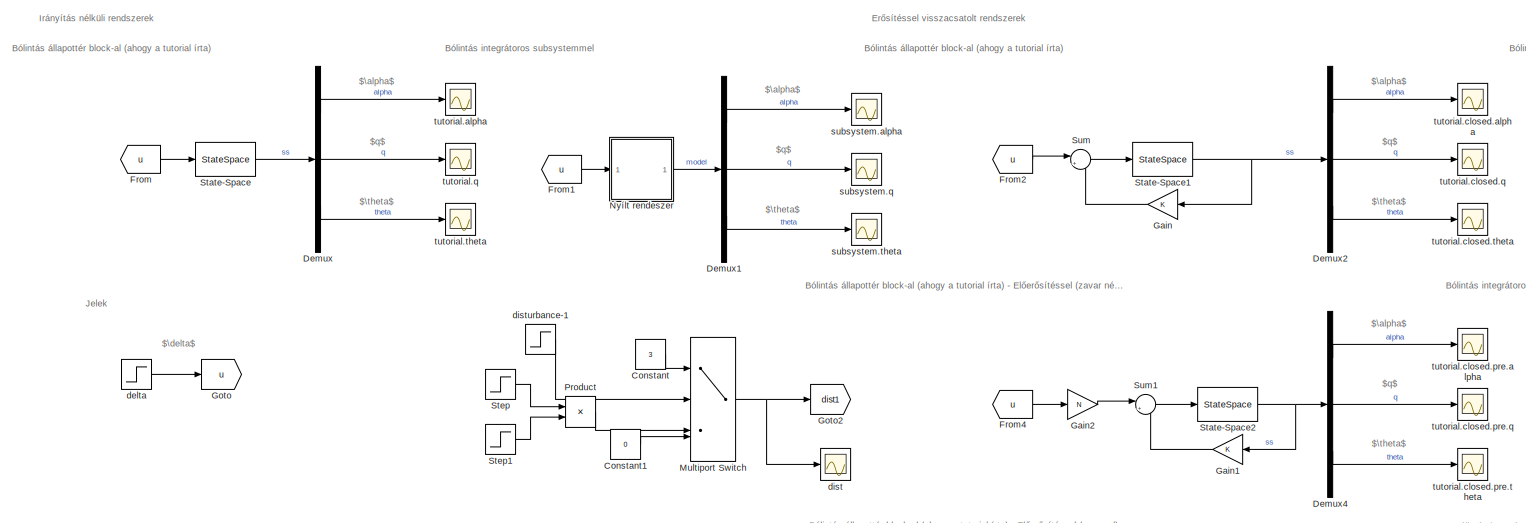
[diagram: root canvas - part 1/5, top left region]
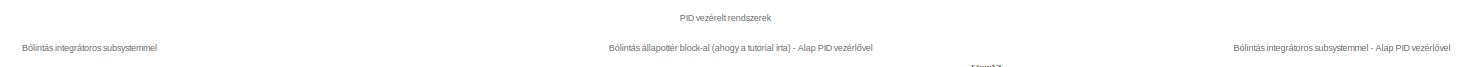
[diagram: root canvas - part 2/5, top center region]
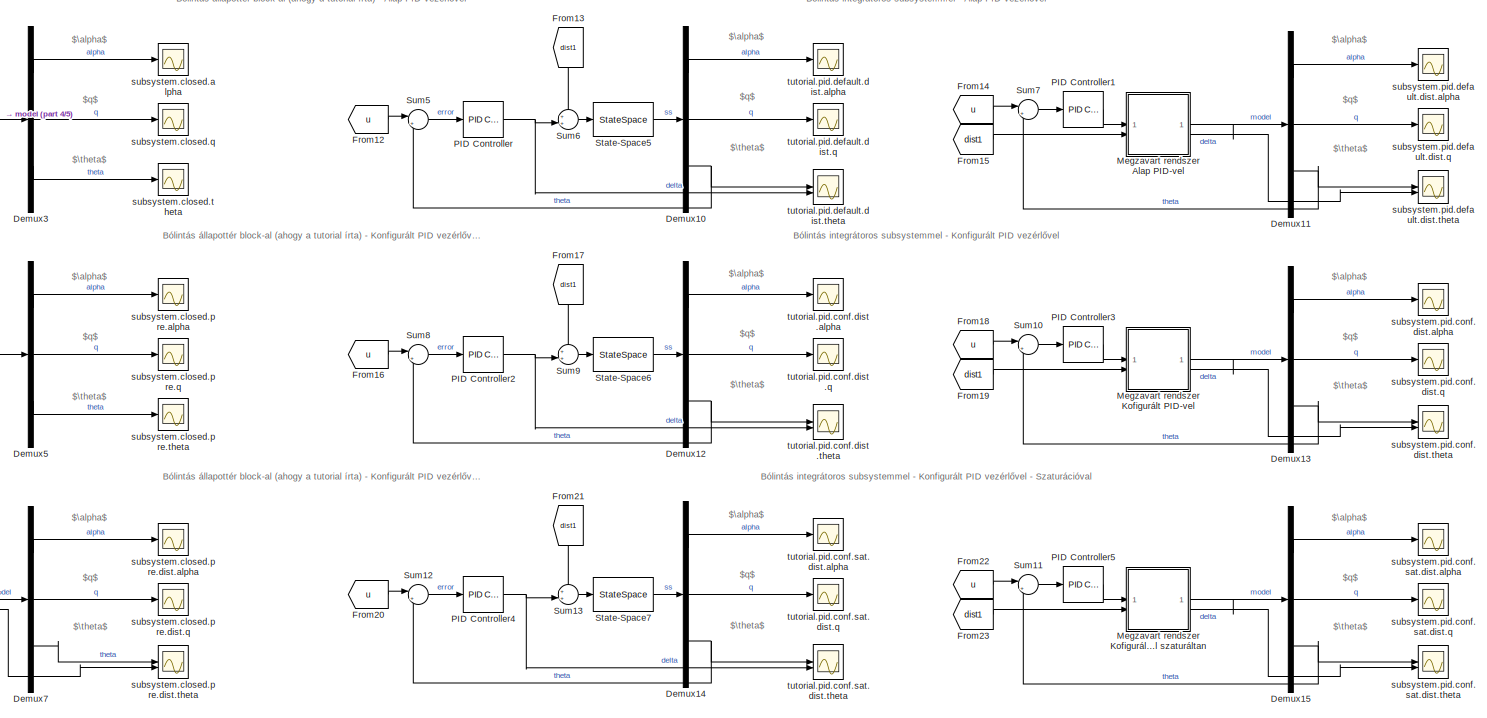
[diagram: root canvas - part 3/5, middle right region]
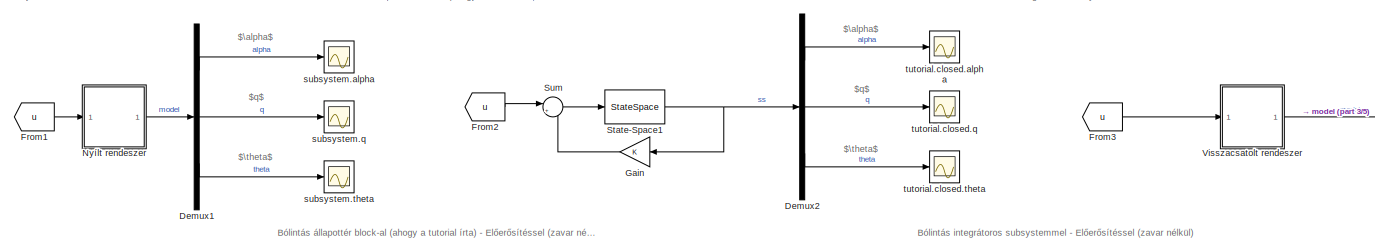
[diagram: root canvas - part 4/5, top center region]
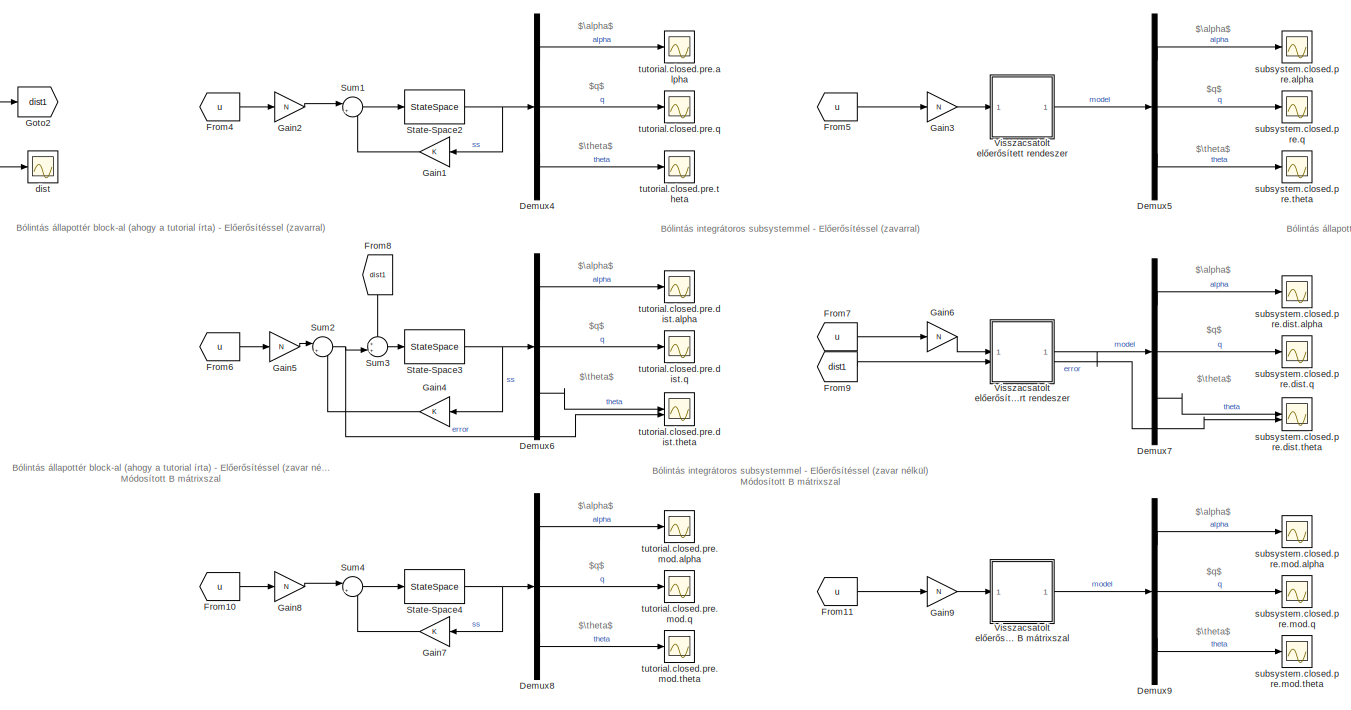
[diagram: root canvas - part 5/5, central region]
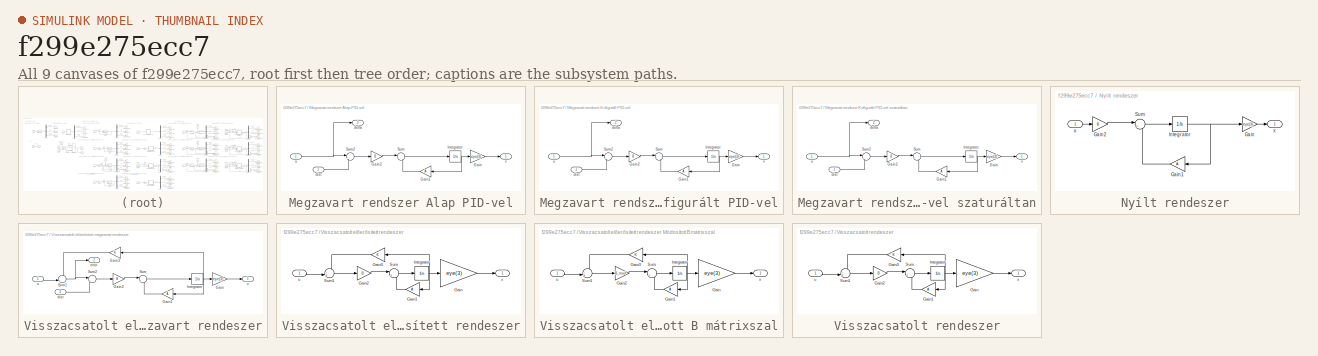
[diagram: thumbnail index - all 9 canvases of the model, root first then tree order]
MODEL slx_f299e275ecc7
KIND model
CONFIG AbsTol = auto
CONFIG EnableMultiTasking = off
CONFIG FixedStep = auto
CONFIG InitFcn = %rendszermátrixok\nA = ...\n    [-0.313 57.7 0;\n    -0.0139 -0.426 0;\n    0 56.7 0];\nB = ...\n    [0.232;\n    0.0203;\n    0];\nC = [0 0 1];\nD = 0;\n\n%visszacsatoló erősítést\nK = [-0.6435 169.6950 7.0711];\n\n%előerősítő értéke\nN = 7.0711;\n\n%módosított rendszermátrix\nB_mod = ...\n    [0.232*1.4;\n    0.0203*0.6;\n    0];
CONFIG MaxStep = auto
CONFIG MinStep = auto
CONFIG RelTol = 1e-3
CONFIG SampleTimeConstraint = Unconstrained
CONFIG SolverName = VariableStepAuto
CONFIG StartTime = 0.0
CONFIG StopTime = 10
BLOCK [Constant] Constant
  Value = 3
BLOCK [Constant] Constant1
  Value = 0
BLOCK [Demux] Demux
  Outputs = 3
BLOCK [Demux] Demux1
  Outputs = 3
BLOCK [Demux] Demux10
  Outputs = 3
BLOCK [Demux] Demux11
  Outputs = 3
BLOCK [Demux] Demux12
  Outputs = 3
BLOCK [Demux] Demux13
  Outputs = 3
BLOCK [Demux] Demux14
  Outputs = 3
BLOCK [Demux] Demux15
  Outputs = 3
BLOCK [Demux] Demux2
  Outputs = 3
BLOCK [Demux] Demux3
  Outputs = 3
BLOCK [Demux] Demux4
  Outputs = 3
BLOCK [Demux] Demux5
  Outputs = 3
BLOCK [Demux] Demux6
  Outputs = 3
BLOCK [Demux] Demux7
  Outputs = 3
BLOCK [Demux] Demux8
  Outputs = 3
BLOCK [Demux] Demux9
  Outputs = 3
BLOCK [From] From
  GotoTag = u
  IconDisplay = Signal name
BLOCK [From] From1
  GotoTag = u
  IconDisplay = Signal name
BLOCK [From] From10
  GotoTag = u
  IconDisplay = Signal name
BLOCK [From] From11
  GotoTag = u
  IconDisplay = Signal name
BLOCK [From] From12
  GotoTag = u
  IconDisplay = Signal name
BLOCK [From] From13
  GotoTag = dist1
  NameLocation = left
BLOCK [From] From14
  GotoTag = u
  IconDisplay = Signal name
BLOCK [From] From15
  GotoTag = dist1
BLOCK [From] From16
  GotoTag = u
  IconDisplay = Signal name
BLOCK [From] From17
  GotoTag = dist1
  NameLocation = left
BLOCK [From] From18
  GotoTag = u
  IconDisplay = Signal name
BLOCK [From] From19
  GotoTag = dist1
BLOCK [From] From2
  GotoTag = u
  IconDisplay = Signal name
BLOCK [From] From20
  GotoTag = u
  IconDisplay = Signal name
BLOCK [From] From21
  GotoTag = dist1
  NameLocation = left
BLOCK [From] From22
  GotoTag = u
  IconDisplay = Signal name
BLOCK [From] From23
  GotoTag = dist1
BLOCK [From] From3
  GotoTag = u
  IconDisplay = Signal name
BLOCK [From] From4
  GotoTag = u
  IconDisplay = Signal name
BLOCK [From] From5
  GotoTag = u
  IconDisplay = Signal name
BLOCK [From] From6
  GotoTag = u
  IconDisplay = Signal name
BLOCK [From] From7
  GotoTag = u
  IconDisplay = Signal name
BLOCK [From] From8
  GotoTag = dist1
  NameLocation = left
BLOCK [From] From9
  GotoTag = dist1
BLOCK [Gain] Gain
  Gain = K
  Multiplication = Matrix(K*u)
BLOCK [Gain] Gain1
  Gain = K
  Multiplication = Matrix(K*u)
BLOCK [Gain] Gain2
  Gain = N
BLOCK [Gain] Gain3
  Gain = N
BLOCK [Gain] Gain4
  Gain = K
  Multiplication = Matrix(K*u)
BLOCK [Gain] Gain5
  Gain = N
BLOCK [Gain] Gain6
  Gain = N
BLOCK [Gain] Gain7
  Gain = K
  Multiplication = Matrix(K*u)
BLOCK [Gain] Gain8
  Gain = N
BLOCK [Gain] Gain9
  Gain = N
BLOCK [Goto] Goto
  GotoTag = u
  IconDisplay = Signal name
BLOCK [Goto] Goto2
  GotoTag = dist1
  IconDisplay = Signal name
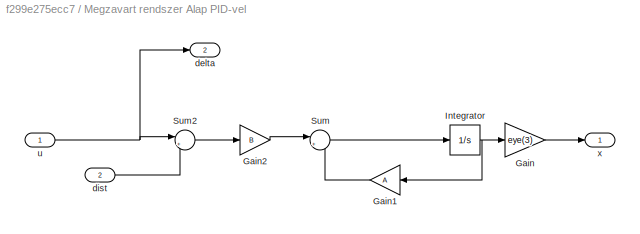
BLOCK [SubSystem] Megzavart rendszer Alap PID-vel
BLOCK [Gain] Megzavart rendszer Alap PID-vel/Gain
  Gain = eye(3)
  Multiplication = Matrix(K*u)
BLOCK [Gain] Megzavart rendszer Alap PID-vel/Gain1
  Gain = A
  Multiplication = Matrix(K*u)
  NameLocation = top
BLOCK [Gain] Megzavart rendszer Alap PID-vel/Gain2
  Gain = B
BLOCK [Integrator] Megzavart rendszer Alap PID-vel/Integrator
  ContinuousStateAttributes = {'Allasszog', 'Bolintas_valtozasa', 'Bolintas'}
BLOCK [Sum] Megzavart rendszer Alap PID-vel/Sum
  Inputs = |++
BLOCK [Sum] Megzavart rendszer Alap PID-vel/Sum2
  Inputs = |++
BLOCK [Outport] Megzavart rendszer Alap PID-vel/delta
  Port = 2
BLOCK [Inport] Megzavart rendszer Alap PID-vel/dist
  IconDisplay = Signal name
  Port = 2
BLOCK [Inport] Megzavart rendszer Alap PID-vel/u
  IconDisplay = Signal name
BLOCK [Outport] Megzavart rendszer Alap PID-vel/x
BLOCK [SubSystem] Megzavart rendszer Kofigurált PID-vel
BLOCK [SubSystem] Megzavart rendszer Kofigurált PID-vel szaturáltan
BLOCK [Gain] Megzavart rendszer Kofigurált PID-vel szaturáltan/Gain
  Gain = eye(3)
  Multiplication = Matrix(K*u)
BLOCK [Gain] Megzavart rendszer Kofigurált PID-vel szaturáltan/Gain1
  Gain = A
  Multiplication = Matrix(K*u)
  NameLocation = top
BLOCK [Gain] Megzavart rendszer Kofigurált PID-vel szaturáltan/Gain2
  Gain = B
BLOCK [Integrator] Megzavart rendszer Kofigurált PID-vel szaturáltan/Integrator
  ContinuousStateAttributes = {'Allasszog', 'Bolintas_valtozasa', 'Bolintas'}
BLOCK [Sum] Megzavart rendszer Kofigurált PID-vel szaturáltan/Sum
  Inputs = |++
BLOCK [Sum] Megzavart rendszer Kofigurált PID-vel szaturáltan/Sum2
  Inputs = |++
BLOCK [Outport] Megzavart rendszer Kofigurált PID-vel szaturáltan/delta
  Port = 2
BLOCK [Inport] Megzavart rendszer Kofigurált PID-vel szaturáltan/dist
  IconDisplay = Signal name
  Port = 2
BLOCK [Inport] Megzavart rendszer Kofigurált PID-vel szaturáltan/u
  IconDisplay = Signal name
BLOCK [Outport] Megzavart rendszer Kofigurált PID-vel szaturáltan/x
BLOCK [Gain] Megzavart rendszer Kofigurált PID-vel/Gain
  Gain = eye(3)
  Multiplication = Matrix(K*u)
BLOCK [Gain] Megzavart rendszer Kofigurált PID-vel/Gain1
  Gain = A
  Multiplication = Matrix(K*u)
  NameLocation = top
BLOCK [Gain] Megzavart rendszer Kofigurált PID-vel/Gain2
  Gain = B
BLOCK [Integrator] Megzavart rendszer Kofigurált PID-vel/Integrator
  ContinuousStateAttributes = {'Allasszog', 'Bolintas_valtozasa', 'Bolintas'}
BLOCK [Sum] Megzavart rendszer Kofigurált PID-vel/Sum
  Inputs = |++
BLOCK [Sum] Megzavart rendszer Kofigurált PID-vel/Sum2
  Inputs = |++
BLOCK [Outport] Megzavart rendszer Kofigurált PID-vel/delta
  Port = 2
BLOCK [Inport] Megzavart rendszer Kofigurált PID-vel/dist
  IconDisplay = Signal name
  Port = 2
BLOCK [Inport] Megzavart rendszer Kofigurált PID-vel/u
  IconDisplay = Signal name
BLOCK [Outport] Megzavart rendszer Kofigurált PID-vel/x
BLOCK [MultiPortSwitch] Multiport Switch
  InputSameDT = off
  SaturateOnIntegerOverflow = off
BLOCK [SubSystem] Nyílt rendeszer
BLOCK [Gain] Nyílt rendeszer/Gain
  Gain = eye(3)
  Multiplication = Matrix(K*u)
BLOCK [Gain] Nyílt rendeszer/Gain1
  Gain = A
  Multiplication = Matrix(K*u)
  NameLocation = top
BLOCK [Gain] Nyílt rendeszer/Gain2
  Gain = B
BLOCK [Integrator] Nyílt rendeszer/Integrator
  ContinuousStateAttributes = {'Allasszog', 'Bolintas_valtozasa', 'Bolintas'}
BLOCK [Sum] Nyílt rendeszer/Sum
  Inputs = |++
BLOCK [Inport] Nyílt rendeszer/u
BLOCK [Outport] Nyílt rendeszer/x
BLOCK [Reference] PID Controller  REF=slpidlib/PID Controller
  LibrarySourceBlock = simulink/Continuous/PID Controller
  SourceBlock = slpidlib/PID Controller
  SourceType = PID 1dof
BLOCK [Reference] PID Controller1  REF=slpidlib/PID Controller
  LibrarySourceBlock = simulink/Continuous/PID Controller
  SourceBlock = slpidlib/PID Controller
  SourceType = PID 1dof
BLOCK [Reference] PID Controller2  REF=slpidlib/PID Controller
  LibrarySourceBlock = simulink/Continuous/PID Controller
  SourceBlock = slpidlib/PID Controller
  SourceType = PID 1dof
BLOCK [Reference] PID Controller3  REF=slpidlib/PID Controller
  LibrarySourceBlock = simulink/Continuous/PID Controller
  SourceBlock = slpidlib/PID Controller
  SourceType = PID 1dof
BLOCK [Reference] PID Controller4  REF=slpidlib/PID Controller
  LibrarySourceBlock = simulink/Continuous/PID Controller
  SourceBlock = slpidlib/PID Controller
  SourceType = PID 1dof
BLOCK [Reference] PID Controller5  REF=slpidlib/PID Controller
  LibrarySourceBlock = simulink/Continuous/PID Controller
  SourceBlock = slpidlib/PID Controller
  SourceType = PID 1dof
BLOCK [Product] Product
BLOCK [StateSpace] State-Space
  A = A
  B = B
  C = eye(3)
  ContinuousStateAttributes = {'Allasszog', 'Bolintas_valtozasa', 'Bolintas'}
  D = [0;0;0]
  InitialCondition = 0
BLOCK [StateSpace] State-Space1
  A = A
  B = B
  C = eye(3)
  ContinuousStateAttributes = {'Allasszog', 'Bolintas_valtozasa', 'Bolintas'}
  D = [0;0;0]
  InitialCondition = 0
BLOCK [StateSpace] State-Space2
  A = A
  B = B
  C = eye(3)
  ContinuousStateAttributes = {'Allasszog', 'Bolintas_valtozasa', 'Bolintas'}
  D = [0;0;0]
  InitialCondition = 0
BLOCK [StateSpace] State-Space3
  A = A
  B = B
  C = eye(3)
  ContinuousStateAttributes = {'Allasszog', 'Bolintas_valtozasa', 'Bolintas'}
  D = [0;0;0]
  InitialCondition = 0
BLOCK [StateSpace] State-Space4
  A = A
  B = B_mod
  C = eye(3)
  ContinuousStateAttributes = {'Allasszog', 'Bolintas_valtozasa', 'Bolintas'}
  D = [0;0;0]
  InitialCondition = 0
BLOCK [StateSpace] State-Space5
  A = A
  B = B
  C = eye(3)
  ContinuousStateAttributes = {'Allasszog', 'Bolintas_valtozasa', 'Bolintas'}
  D = [0;0;0]
  InitialCondition = 0
BLOCK [StateSpace] State-Space6
  A = A
  B = B
  C = eye(3)
  ContinuousStateAttributes = {'Allasszog', 'Bolintas_valtozasa', 'Bolintas'}
  D = [0;0;0]
  InitialCondition = 0
BLOCK [StateSpace] State-Space7
  A = A
  B = B
  C = eye(3)
  ContinuousStateAttributes = {'Allasszog', 'Bolintas_valtozasa', 'Bolintas'}
  D = [0;0;0]
  InitialCondition = 0
BLOCK [Step] Step
  After = 0
  Before = 1
  SampleTime = 0
  Time = 7
BLOCK [Step] Step1
  After = 0.4
  SampleTime = 0
  Time = 3
BLOCK [Sum] Sum
  Inputs = |+-
BLOCK [Sum] Sum1
  Inputs = |+-
BLOCK [Sum] Sum10
  Inputs = |+-
BLOCK [Sum] Sum11
  Inputs = |+-
BLOCK [Sum] Sum12
  Inputs = |+-
BLOCK [Sum] Sum13
  Inputs = ++|
BLOCK [Sum] Sum2
  Inputs = |+-
BLOCK [Sum] Sum3
  Inputs = ++|
BLOCK [Sum] Sum4
  Inputs = |+-
BLOCK [Sum] Sum5
  Inputs = |+-
BLOCK [Sum] Sum6
  Inputs = ++|
BLOCK [Sum] Sum7
  Inputs = |+-
BLOCK [Sum] Sum8
  Inputs = |+-
BLOCK [Sum] Sum9
  Inputs = ++|
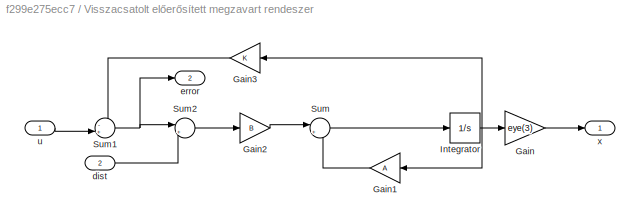
BLOCK [SubSystem] Visszacsatolt előerősített megzavart rendeszer
BLOCK [Gain] Visszacsatolt előerősített megzavart rendeszer/Gain
  Gain = eye(3)
  Multiplication = Matrix(K*u)
BLOCK [Gain] Visszacsatolt előerősített megzavart rendeszer/Gain1
  Gain = A
  Multiplication = Matrix(K*u)
  NameLocation = top
BLOCK [Gain] Visszacsatolt előerősített megzavart rendeszer/Gain2
  Gain = B
BLOCK [Gain] Visszacsatolt előerősített megzavart rendeszer/Gain3
  Gain = K
  Multiplication = Matrix(K*u)
BLOCK [Integrator] Visszacsatolt előerősített megzavart rendeszer/Integrator
  ContinuousStateAttributes = {'Allasszog', 'Bolintas_valtozasa', 'Bolintas'}
BLOCK [Sum] Visszacsatolt előerősített megzavart rendeszer/Sum
  Inputs = |++
BLOCK [Sum] Visszacsatolt előerősített megzavart rendeszer/Sum1
  Inputs = -+|
BLOCK [Sum] Visszacsatolt előerősített megzavart rendeszer/Sum2
  Inputs = |++
BLOCK [Inport] Visszacsatolt előerősített megzavart rendeszer/dist
  IconDisplay = Signal name
  Port = 2
BLOCK [Outport] Visszacsatolt előerősített megzavart rendeszer/error
  Port = 2
BLOCK [Inport] Visszacsatolt előerősített megzavart rendeszer/u
  IconDisplay = Signal name
BLOCK [Outport] Visszacsatolt előerősített megzavart rendeszer/x
BLOCK [SubSystem] Visszacsatolt előerősített rendeszer
BLOCK [SubSystem] Visszacsatolt előerősített rendeszer Módosított B mátrixszal
BLOCK [Gain] Visszacsatolt előerősített rendeszer Módosított B mátrixszal/Gain
  Gain = eye(3)
  Multiplication = Matrix(K*u)
BLOCK [Gain] Visszacsatolt előerősített rendeszer Módosított B mátrixszal/Gain1
  Gain = A
  Multiplication = Matrix(K*u)
  NameLocation = top
BLOCK [Gain] Visszacsatolt előerősített rendeszer Módosított B mátrixszal/Gain2
  Gain = B_mod
BLOCK [Gain] Visszacsatolt előerősített rendeszer Módosított B mátrixszal/Gain3
  Gain = K
  Multiplication = Matrix(K*u)
BLOCK [Integrator] Visszacsatolt előerősített rendeszer Módosított B mátrixszal/Integrator
  ContinuousStateAttributes = {'Allasszog', 'Bolintas_valtozasa', 'Bolintas'}
BLOCK [Sum] Visszacsatolt előerősített rendeszer Módosított B mátrixszal/Sum
  Inputs = |++
BLOCK [Sum] Visszacsatolt előerősített rendeszer Módosított B mátrixszal/Sum1
  Inputs = -+|
BLOCK [Inport] Visszacsatolt előerősített rendeszer Módosított B mátrixszal/u
BLOCK [Outport] Visszacsatolt előerősített rendeszer Módosított B mátrixszal/x
BLOCK [Gain] Visszacsatolt előerősített rendeszer/Gain
  Gain = eye(3)
  Multiplication = Matrix(K*u)
BLOCK [Gain] Visszacsatolt előerősített rendeszer/Gain1
  Gain = A
  Multiplication = Matrix(K*u)
  NameLocation = top
BLOCK [Gain] Visszacsatolt előerősített rendeszer/Gain2
  Gain = B
BLOCK [Gain] Visszacsatolt előerősített rendeszer/Gain3
  Gain = K
  Multiplication = Matrix(K*u)
BLOCK [Integrator] Visszacsatolt előerősített rendeszer/Integrator
  ContinuousStateAttributes = {'Allasszog', 'Bolintas_valtozasa', 'Bolintas'}
BLOCK [Sum] Visszacsatolt előerősített rendeszer/Sum
  Inputs = |++
BLOCK [Sum] Visszacsatolt előerősített rendeszer/Sum1
  Inputs = -+|
BLOCK [Inport] Visszacsatolt előerősített rendeszer/u
BLOCK [Outport] Visszacsatolt előerősített rendeszer/x
BLOCK [SubSystem] Visszacsatolt rendeszer
BLOCK [Gain] Visszacsatolt rendeszer/Gain
  Gain = eye(3)
  Multiplication = Matrix(K*u)
BLOCK [Gain] Visszacsatolt rendeszer/Gain1
  Gain = A
  Multiplication = Matrix(K*u)
  NameLocation = top
BLOCK [Gain] Visszacsatolt rendeszer/Gain2
  Gain = B
BLOCK [Gain] Visszacsatolt rendeszer/Gain3
  Gain = K
  Multiplication = Matrix(K*u)
BLOCK [Integrator] Visszacsatolt rendeszer/Integrator
  ContinuousStateAttributes = {'Allasszog', 'Bolintas_valtozasa', 'Bolintas'}
BLOCK [Sum] Visszacsatolt rendeszer/Sum
  Inputs = |++
BLOCK [Sum] Visszacsatolt rendeszer/Sum1
  Inputs = -+|
BLOCK [Inport] Visszacsatolt rendeszer/u
BLOCK [Outport] Visszacsatolt rendeszer/x
BLOCK [Step] delta
  After = 0.2
  SampleTime = 0
  Time = 0
BLOCK [Scope] dist
  Floating = off
  NumInputPorts = 1
  ScopeSpecificationString = Simulink.scopes.TimeScopeBlockCfg('CurrentConfiguration', extmgr.ConfigurationSet(extmgr.Configuration('Core','General UI',true),extmgr.Configuration('Core','Source UI',true),extmgr.Configuration('Sources','WiredSimulink',true,'DataLoggingVariableName','ScopeData19'),extmgr.Configuration('Visuals','Time Domain',true,'SerializedDisplays',{struct('MinYLimReal','-1.00000','MaxYLimReal','1.00000','YLa...<+1495ch>
BLOCK [Step] disturbance-1
  After = 0.2
  SampleTime = 0
  Time = 3
BLOCK [Scope] subsystem.alpha
  Floating = off
  NumInputPorts = 1
  ScopeSpecificationString = Simulink.scopes.TimeScopeBlockCfg('CurrentConfiguration', extmgr.ConfigurationSet(extmgr.Configuration('Core','General UI',true),extmgr.Configuration('Core','Source UI',true),extmgr.Configuration('Sources','WiredSimulink',true,'DataLoggingVariableName','ScopeData1'),extmgr.Configuration('Visuals','Time Domain',true,'SerializedDisplays',{struct('MinYLimReal','-0.04337','MaxYLimReal','0.39031','YLab...<+1451ch>  <repeated x3 — deduplicated; at blocks: subsystem.alpha, tutorial.alpha, tutorial.pid.default.dist.alpha>
BLOCK [Scope] subsystem.closed.alpha
  Floating = off
  NumInputPorts = 1
  ScopeSpecificationString = Simulink.scopes.TimeScopeBlockCfg('CurrentConfiguration', extmgr.ConfigurationSet(extmgr.Configuration('Core','General UI',true),extmgr.Configuration('Core','Source UI',true),extmgr.Configuration('Sources','WiredSimulink',true,'DataLoggingVariableName','ScopeData7'),extmgr.Configuration('Visuals','Time Domain',true,'SerializedDisplays',{struct('MinYLimReal','-1.00000','MaxYLimReal','1.00000','YLab...<+1451ch>
BLOCK [Scope] subsystem.closed.pre.alpha
  Floating = off
  NumInputPorts = 1
  ScopeSpecificationString = Simulink.scopes.TimeScopeBlockCfg('CurrentConfiguration', extmgr.ConfigurationSet(extmgr.Configuration('Core','General UI',true),extmgr.Configuration('Core','Source UI',true),extmgr.Configuration('Sources','WiredSimulink',true,'DataLoggingVariableName','ScopeData10'),extmgr.Configuration('Visuals','Time Domain',true,'SerializedDisplays',{struct('MinYLimReal','-1.00000','MaxYLimReal','1.00000','YLa...<+1452ch>
BLOCK [Scope] subsystem.closed.pre.dist.alpha
  Floating = off
  NumInputPorts = 1
  ScopeSpecificationString = Simulink.scopes.TimeScopeBlockCfg('CurrentConfiguration', extmgr.ConfigurationSet(extmgr.Configuration('Core','General UI',true),extmgr.Configuration('Core','Source UI',true),extmgr.Configuration('Sources','WiredSimulink',true,'DataLoggingVariableName','ScopeData16'),extmgr.Configuration('Visuals','Time Domain',true,'SerializedDisplays',{struct('MinYLimReal','-1.00000','MaxYLimReal','1.00000','YLa...<+1452ch>
BLOCK [Scope] subsystem.closed.pre.dist.q
  Floating = off
  NumInputPorts = 1
  ScopeSpecificationString = Simulink.scopes.TimeScopeBlockCfg('CurrentConfiguration', extmgr.ConfigurationSet(extmgr.Configuration('Core','General UI',true),extmgr.Configuration('Core','Source UI',true),extmgr.Configuration('Sources','WiredSimulink',true,'DataLoggingVariableName','ScopeData17'),extmgr.Configuration('Visuals','Time Domain',true,'SerializedDisplays',{struct('MinYLimReal','-1.00000','MaxYLimReal','1.00000','YLa...<+1467ch>
BLOCK [Scope] subsystem.closed.pre.dist.theta
  Floating = off
  NumInputPorts = 2
  ScopeSpecificationString = Simulink.scopes.TimeScopeBlockCfg('CurrentConfiguration', extmgr.ConfigurationSet(extmgr.Configuration('Core','General UI',true),extmgr.Configuration('Core','Source UI',true),extmgr.Configuration('Sources','WiredSimulink',true,'DataLoggingVariableName','ScopeData18'),extmgr.Configuration('Visuals','Time Domain',true,'SerializedDisplays',{struct('MinYLimReal','-0.02862','MaxYLimReal','0.25761','YLa...<+2166ch>
BLOCK [Scope] subsystem.closed.pre.mod.alpha
  Floating = off
  NumInputPorts = 1
  ScopeSpecificationString = Simulink.scopes.TimeScopeBlockCfg('CurrentConfiguration', extmgr.ConfigurationSet(extmgr.Configuration('Core','General UI',true),extmgr.Configuration('Core','Source UI',true),extmgr.Configuration('Sources','WiredSimulink',true,'DataLoggingVariableName','ScopeData22'),extmgr.Configuration('Visuals','Time Domain',true,'SerializedDisplays',{struct('MinYLimReal','-0.23361','MaxYLimReal','2.10247','YLa...<+1452ch>
BLOCK [Scope] subsystem.closed.pre.mod.q
  Floating = off
  NumInputPorts = 1
  ScopeSpecificationString = Simulink.scopes.TimeScopeBlockCfg('CurrentConfiguration', extmgr.ConfigurationSet(extmgr.Configuration('Core','General UI',true),extmgr.Configuration('Core','Source UI',true),extmgr.Configuration('Sources','WiredSimulink',true,'DataLoggingVariableName','ScopeData23'),extmgr.Configuration('Visuals','Time Domain',true,'SerializedDisplays',{struct('MinYLimReal','-0.00096','MaxYLimReal','0.00431','YLa...<+1467ch>
BLOCK [Scope] subsystem.closed.pre.mod.theta
  Floating = off
  NumInputPorts = 1
  ScopeSpecificationString = Simulink.scopes.TimeScopeBlockCfg('CurrentConfiguration', extmgr.ConfigurationSet(extmgr.Configuration('Core','General UI',true),extmgr.Configuration('Core','Source UI',true),extmgr.Configuration('Sources','WiredSimulink',true,'DataLoggingVariableName','ScopeData24'),extmgr.Configuration('Visuals','Time Domain',true,'SerializedDisplays',{struct('MinYLimReal','-0.02538','MaxYLimReal','0.22845','YLa...<+1596ch>
BLOCK [Scope] subsystem.closed.pre.q
  Floating = off
  NumInputPorts = 1
  ScopeSpecificationString = Simulink.scopes.TimeScopeBlockCfg('CurrentConfiguration', extmgr.ConfigurationSet(extmgr.Configuration('Core','General UI',true),extmgr.Configuration('Core','Source UI',true),extmgr.Configuration('Sources','WiredSimulink',true,'DataLoggingVariableName','ScopeData11'),extmgr.Configuration('Visuals','Time Domain',true,'SerializedDisplays',{struct('MinYLimReal','-1.00000','MaxYLimReal','1.00000','YLa...<+1467ch>
BLOCK [Scope] subsystem.closed.pre.theta
  Floating = off
  NumInputPorts = 1
  ScopeSpecificationString = Simulink.scopes.TimeScopeBlockCfg('CurrentConfiguration', extmgr.ConfigurationSet(extmgr.Configuration('Core','General UI',true),extmgr.Configuration('Core','Source UI',true),extmgr.Configuration('Sources','WiredSimulink',true,'DataLoggingVariableName','ScopeData12'),extmgr.Configuration('Visuals','Time Domain',true,'SerializedDisplays',{struct('MinYLimReal','-0.02618','MaxYLimReal','0.23566','YLa...<+1596ch>
BLOCK [Scope] subsystem.closed.q
  Floating = off
  NumInputPorts = 1
  ScopeSpecificationString = Simulink.scopes.TimeScopeBlockCfg('CurrentConfiguration', extmgr.ConfigurationSet(extmgr.Configuration('Core','General UI',true),extmgr.Configuration('Core','Source UI',true),extmgr.Configuration('Sources','WiredSimulink',true,'DataLoggingVariableName','ScopeData8'),extmgr.Configuration('Visuals','Time Domain',true,'SerializedDisplays',{struct('MinYLimReal','-1.00000','MaxYLimReal','1.00000','YLab...<+1466ch>
BLOCK [Scope] subsystem.closed.theta
  Floating = off
  NumInputPorts = 1
  ScopeSpecificationString = Simulink.scopes.TimeScopeBlockCfg('CurrentConfiguration', extmgr.ConfigurationSet(extmgr.Configuration('Core','General UI',true),extmgr.Configuration('Core','Source UI',true),extmgr.Configuration('Sources','WiredSimulink',true,'DataLoggingVariableName','ScopeData9'),extmgr.Configuration('Visuals','Time Domain',true,'SerializedDisplays',{struct('MinYLimReal','-0.0037','MaxYLimReal','0.03333','YLabe...<+1593ch>
BLOCK [Scope] subsystem.pid.conf.dist.alpha
  Floating = off
  NumInputPorts = 1
  ScopeSpecificationString = Simulink.scopes.TimeScopeBlockCfg('CurrentConfiguration', extmgr.ConfigurationSet(extmgr.Configuration('Core','General UI',true),extmgr.Configuration('Core','Source UI',true),extmgr.Configuration('Sources','WiredSimulink',true,'DataLoggingVariableName','ScopeData7'),extmgr.Configuration('Visuals','Time Domain',true,'SerializedDisplays',{struct('MinYLimReal','-1.00000','MaxYLimReal','1.00000','YLab...<+1451ch>
BLOCK [Scope] subsystem.pid.conf.dist.q
  Floating = off
  NumInputPorts = 1
  ScopeSpecificationString = Simulink.scopes.TimeScopeBlockCfg('CurrentConfiguration', extmgr.ConfigurationSet(extmgr.Configuration('Core','General UI',true),extmgr.Configuration('Core','Source UI',true),extmgr.Configuration('Sources','WiredSimulink',true,'DataLoggingVariableName','ScopeData8'),extmgr.Configuration('Visuals','Time Domain',true,'SerializedDisplays',{struct('MinYLimReal','-1.00000','MaxYLimReal','1.00000','YLab...<+1466ch>
BLOCK [Scope] subsystem.pid.conf.dist.theta
  Floating = off
  NumInputPorts = 2
  ScopeSpecificationString = Simulink.scopes.TimeScopeBlockCfg('CurrentConfiguration', extmgr.ConfigurationSet(extmgr.Configuration('Core','General UI',true),extmgr.Configuration('Core','Source UI',true),extmgr.Configuration('Sources','WiredSimulink',true,'DataLoggingVariableName','ScopeData9'),extmgr.Configuration('Visuals','Time Domain',true,'SerializedDisplays',{struct('MinYLimReal','-0.02832','MaxYLimReal','0.25492','YLab...<+2169ch>
BLOCK [Scope] subsystem.pid.conf.sat.dist.alpha
  Floating = off
  NumInputPorts = 1
  ScopeSpecificationString = Simulink.scopes.TimeScopeBlockCfg('CurrentConfiguration', extmgr.ConfigurationSet(extmgr.Configuration('Core','General UI',true),extmgr.Configuration('Core','Source UI',true),extmgr.Configuration('Sources','WiredSimulink',true,'DataLoggingVariableName','ScopeData13'),extmgr.Configuration('Visuals','Time Domain',true,'SerializedDisplays',{struct('MinYLimReal','-1.00000','MaxYLimReal','1.00000','YLa...<+1452ch>
BLOCK [Scope] subsystem.pid.conf.sat.dist.q
  Floating = off
  NumInputPorts = 1
  ScopeSpecificationString = Simulink.scopes.TimeScopeBlockCfg('CurrentConfiguration', extmgr.ConfigurationSet(extmgr.Configuration('Core','General UI',true),extmgr.Configuration('Core','Source UI',true),extmgr.Configuration('Sources','WiredSimulink',true,'DataLoggingVariableName','ScopeData14'),extmgr.Configuration('Visuals','Time Domain',true,'SerializedDisplays',{struct('MinYLimReal','-1.00000','MaxYLimReal','1.00000','YLa...<+1467ch>
BLOCK [Scope] subsystem.pid.conf.sat.dist.theta
  Floating = off
  NumInputPorts = 2
  ScopeSpecificationString = Simulink.scopes.TimeScopeBlockCfg('CurrentConfiguration', extmgr.ConfigurationSet(extmgr.Configuration('Core','General UI',true),extmgr.Configuration('Core','Source UI',true),extmgr.Configuration('Sources','WiredSimulink',true,'DataLoggingVariableName','ScopeData15'),extmgr.Configuration('Visuals','Time Domain',true,'SerializedDisplays',{struct('MinYLimReal','-0.02832','MaxYLimReal','0.25488','YLa...<+2171ch>
BLOCK [Scope] subsystem.pid.default.dist.alpha
  Floating = off
  NumInputPorts = 1
  ScopeSpecificationString = Simulink.scopes.TimeScopeBlockCfg('CurrentConfiguration', extmgr.ConfigurationSet(extmgr.Configuration('Core','General UI',true),extmgr.Configuration('Core','Source UI',true),extmgr.Configuration('Sources','WiredSimulink',true,'DataLoggingVariableName','ScopeData4'),extmgr.Configuration('Visuals','Time Domain',true,'SerializedDisplays',{struct('MinYLimReal','-1.00000','MaxYLimReal','1.00000','YLab...<+1451ch>
BLOCK [Scope] subsystem.pid.default.dist.q
  Floating = off
  NumInputPorts = 1
  ScopeSpecificationString = Simulink.scopes.TimeScopeBlockCfg('CurrentConfiguration', extmgr.ConfigurationSet(extmgr.Configuration('Core','General UI',true),extmgr.Configuration('Core','Source UI',true),extmgr.Configuration('Sources','WiredSimulink',true,'DataLoggingVariableName','ScopeData5'),extmgr.Configuration('Visuals','Time Domain',true,'SerializedDisplays',{struct('MinYLimReal','-1.00000','MaxYLimReal','1.00000','YLab...<+1466ch>
BLOCK [Scope] subsystem.pid.default.dist.theta
  Floating = off
  NumInputPorts = 2
  ScopeSpecificationString = Simulink.scopes.TimeScopeBlockCfg('CurrentConfiguration', extmgr.ConfigurationSet(extmgr.Configuration('Core','General UI',true),extmgr.Configuration('Core','Source UI',true),extmgr.Configuration('Sources','WiredSimulink',true,'DataLoggingVariableName','ScopeData6'),extmgr.Configuration('Visuals','Time Domain',true,'SerializedDisplays',{struct('MinYLimReal','-0.04029','MaxYLimReal','0.36262','YLab...<+2166ch>
BLOCK [Scope] subsystem.q
  Floating = off
  NumInputPorts = 1
  ScopeSpecificationString = Simulink.scopes.TimeScopeBlockCfg('CurrentConfiguration', extmgr.ConfigurationSet(extmgr.Configuration('Core','General UI',true),extmgr.Configuration('Core','Source UI',true),extmgr.Configuration('Sources','WiredSimulink',true,'DataLoggingVariableName','ScopeData2'),extmgr.Configuration('Visuals','Time Domain',true,'SerializedDisplays',{struct('MinYLimReal','-0.00037','MaxYLimReal','0.00333','YLab...<+1466ch>
BLOCK [Scope] subsystem.theta
  Floating = off
  NumInputPorts = 1
  ScopeSpecificationString = Simulink.scopes.TimeScopeBlockCfg('CurrentConfiguration', extmgr.ConfigurationSet(extmgr.Configuration('Core','General UI',true),extmgr.Configuration('Core','Source UI',true),extmgr.Configuration('Sources','WiredSimulink',true,'DataLoggingVariableName','ScopeData3'),extmgr.Configuration('Visuals','Time Domain',true,'SerializedDisplays',{struct('MinYLimReal','-0.2167','MaxYLimReal','1.95027','YLabe...<+1593ch>
BLOCK [Scope] tutorial.alpha
  Floating = off
  NumInputPorts = 1
BLOCK [Scope] tutorial.closed.alpha
  Floating = off
  NumInputPorts = 1
  ScopeSpecificationString = Simulink.scopes.TimeScopeBlockCfg('CurrentConfiguration', extmgr.ConfigurationSet(extmgr.Configuration('Core','General UI',true),extmgr.Configuration('Core','Source UI',true),extmgr.Configuration('Sources','WiredSimulink',true,'DataLoggingVariableName','ScopeData4'),extmgr.Configuration('Visuals','Time Domain',true,'SerializedDisplays',{struct('MinYLimReal','-0.04337','MaxYLimReal','0.39031','YLab...<+1451ch>
BLOCK [Scope] tutorial.closed.pre.alpha
  Floating = off
  NumInputPorts = 1
  ScopeSpecificationString = Simulink.scopes.TimeScopeBlockCfg('CurrentConfiguration', extmgr.ConfigurationSet(extmgr.Configuration('Core','General UI',true),extmgr.Configuration('Core','Source UI',true),extmgr.Configuration('Sources','WiredSimulink',true,'DataLoggingVariableName','ScopeData13'),extmgr.Configuration('Visuals','Time Domain',true,'SerializedDisplays',{struct('MinYLimReal','-0.04337','MaxYLimReal','0.39031','YLa...<+1452ch>
BLOCK [Scope] tutorial.closed.pre.dist.alpha
  Floating = off
  NumInputPorts = 1
  ScopeSpecificationString = Simulink.scopes.TimeScopeBlockCfg('CurrentConfiguration', extmgr.ConfigurationSet(extmgr.Configuration('Core','General UI',true),extmgr.Configuration('Core','Source UI',true),extmgr.Configuration('Sources','WiredSimulink',true,'DataLoggingVariableName','ScopeData19'),extmgr.Configuration('Visuals','Time Domain',true,'SerializedDisplays',{struct('MinYLimReal','-0.04337','MaxYLimReal','0.39031','YLa...<+1452ch>
BLOCK [Scope] tutorial.closed.pre.dist.q
  Floating = off
  NumInputPorts = 1
  ScopeSpecificationString = Simulink.scopes.TimeScopeBlockCfg('CurrentConfiguration', extmgr.ConfigurationSet(extmgr.Configuration('Core','General UI',true),extmgr.Configuration('Core','Source UI',true),extmgr.Configuration('Sources','WiredSimulink',true,'DataLoggingVariableName','ScopeData20'),extmgr.Configuration('Visuals','Time Domain',true,'SerializedDisplays',{struct('MinYLimReal','-0.00037','MaxYLimReal','0.00334','YLa...<+1467ch>
BLOCK [Scope] tutorial.closed.pre.dist.theta
  Floating = off
  NumInputPorts = 2
  ScopeSpecificationString = Simulink.scopes.TimeScopeBlockCfg('CurrentConfiguration', extmgr.ConfigurationSet(extmgr.Configuration('Core','General UI',true),extmgr.Configuration('Core','Source UI',true),extmgr.Configuration('Sources','WiredSimulink',true,'DataLoggingVariableName','ScopeData21'),extmgr.Configuration('Visuals','Time Domain',true,'SerializedDisplays',{struct('MinYLimReal','-0.02862','MaxYLimReal','0.25761','YLa...<+2166ch>
BLOCK [Scope] tutorial.closed.pre.mod.alpha
  Floating = off
  NumInputPorts = 1
  ScopeSpecificationString = Simulink.scopes.TimeScopeBlockCfg('CurrentConfiguration', extmgr.ConfigurationSet(extmgr.Configuration('Core','General UI',true),extmgr.Configuration('Core','Source UI',true),extmgr.Configuration('Sources','WiredSimulink',true,'DataLoggingVariableName','ScopeData25'),extmgr.Configuration('Visuals','Time Domain',true,'SerializedDisplays',{struct('MinYLimReal','-0.23361','MaxYLimReal','2.10247','YLa...<+1452ch>
BLOCK [Scope] tutorial.closed.pre.mod.q
  Floating = off
  NumInputPorts = 1
  ScopeSpecificationString = Simulink.scopes.TimeScopeBlockCfg('CurrentConfiguration', extmgr.ConfigurationSet(extmgr.Configuration('Core','General UI',true),extmgr.Configuration('Core','Source UI',true),extmgr.Configuration('Sources','WiredSimulink',true,'DataLoggingVariableName','ScopeData26'),extmgr.Configuration('Visuals','Time Domain',true,'SerializedDisplays',{struct('MinYLimReal','-0.00037','MaxYLimReal','0.00334','YLa...<+1467ch>
BLOCK [Scope] tutorial.closed.pre.mod.theta
  Floating = off
  NumInputPorts = 1
  ScopeSpecificationString = Simulink.scopes.TimeScopeBlockCfg('CurrentConfiguration', extmgr.ConfigurationSet(extmgr.Configuration('Core','General UI',true),extmgr.Configuration('Core','Source UI',true),extmgr.Configuration('Sources','WiredSimulink',true,'DataLoggingVariableName','ScopeData27'),extmgr.Configuration('Visuals','Time Domain',true,'SerializedDisplays',{struct('MinYLimReal','-0.02538','MaxYLimReal','0.22845','YLa...<+1596ch>
BLOCK [Scope] tutorial.closed.pre.q
  Floating = off
  NumInputPorts = 1
  ScopeSpecificationString = Simulink.scopes.TimeScopeBlockCfg('CurrentConfiguration', extmgr.ConfigurationSet(extmgr.Configuration('Core','General UI',true),extmgr.Configuration('Core','Source UI',true),extmgr.Configuration('Sources','WiredSimulink',true,'DataLoggingVariableName','ScopeData14'),extmgr.Configuration('Visuals','Time Domain',true,'SerializedDisplays',{struct('MinYLimReal','-0.00037','MaxYLimReal','0.00334','YLa...<+1467ch>
BLOCK [Scope] tutorial.closed.pre.theta
  Floating = off
  NumInputPorts = 1
  ScopeSpecificationString = Simulink.scopes.TimeScopeBlockCfg('CurrentConfiguration', extmgr.ConfigurationSet(extmgr.Configuration('Core','General UI',true),extmgr.Configuration('Core','Source UI',true),extmgr.Configuration('Sources','WiredSimulink',true,'DataLoggingVariableName','ScopeData15'),extmgr.Configuration('Visuals','Time Domain',true,'SerializedDisplays',{struct('MinYLimReal','-0.02618','MaxYLimReal','0.23566','YLa...<+1596ch>
BLOCK [Scope] tutorial.closed.q
  Floating = off
  NumInputPorts = 1
  ScopeSpecificationString = Simulink.scopes.TimeScopeBlockCfg('CurrentConfiguration', extmgr.ConfigurationSet(extmgr.Configuration('Core','General UI',true),extmgr.Configuration('Core','Source UI',true),extmgr.Configuration('Sources','WiredSimulink',true,'DataLoggingVariableName','ScopeData5'),extmgr.Configuration('Visuals','Time Domain',true,'SerializedDisplays',{struct('MinYLimReal','-0.00037','MaxYLimReal','0.00334','YLab...<+1466ch>
BLOCK [Scope] tutorial.closed.theta
  Floating = off
  NumInputPorts = 1
  ScopeSpecificationString = Simulink.scopes.TimeScopeBlockCfg('CurrentConfiguration', extmgr.ConfigurationSet(extmgr.Configuration('Core','General UI',true),extmgr.Configuration('Core','Source UI',true),extmgr.Configuration('Sources','WiredSimulink',true,'DataLoggingVariableName','ScopeData6'),extmgr.Configuration('Visuals','Time Domain',true,'SerializedDisplays',{struct('MinYLimReal','-0.0037','MaxYLimReal','0.03333','YLabe...<+1593ch>
BLOCK [Scope] tutorial.pid.conf.dist.alpha
  Floating = off
  NumInputPorts = 1
  ScopeSpecificationString = Simulink.scopes.TimeScopeBlockCfg('CurrentConfiguration', extmgr.ConfigurationSet(extmgr.Configuration('Core','General UI',true),extmgr.Configuration('Core','Source UI',true),extmgr.Configuration('Sources','WiredSimulink',true,'DataLoggingVariableName','ScopeData10'),extmgr.Configuration('Visuals','Time Domain',true,'SerializedDisplays',{struct('MinYLimReal','-0.04337','MaxYLimReal','0.39031','YLa...<+1452ch>
BLOCK [Scope] tutorial.pid.conf.dist.q
  Floating = off
  NumInputPorts = 1
  ScopeSpecificationString = Simulink.scopes.TimeScopeBlockCfg('CurrentConfiguration', extmgr.ConfigurationSet(extmgr.Configuration('Core','General UI',true),extmgr.Configuration('Core','Source UI',true),extmgr.Configuration('Sources','WiredSimulink',true,'DataLoggingVariableName','ScopeData11'),extmgr.Configuration('Visuals','Time Domain',true,'SerializedDisplays',{struct('MinYLimReal','-0.00037','MaxYLimReal','0.00334','YLa...<+1467ch>
BLOCK [Scope] tutorial.pid.conf.dist.theta
  Floating = off
  NumInputPorts = 2
  ScopeSpecificationString = Simulink.scopes.TimeScopeBlockCfg('CurrentConfiguration', extmgr.ConfigurationSet(extmgr.Configuration('Core','General UI',true),extmgr.Configuration('Core','Source UI',true),extmgr.Configuration('Sources','WiredSimulink',true,'DataLoggingVariableName','ScopeData12'),extmgr.Configuration('Visuals','Time Domain',true,'SerializedDisplays',{struct('MinYLimReal','-0.02832','MaxYLimReal','0.25492','YLa...<+2196ch>
BLOCK [Scope] tutorial.pid.conf.sat.dist.alpha
  Floating = off
  NumInputPorts = 1
  ScopeSpecificationString = Simulink.scopes.TimeScopeBlockCfg('CurrentConfiguration', extmgr.ConfigurationSet(extmgr.Configuration('Core','General UI',true),extmgr.Configuration('Core','Source UI',true),extmgr.Configuration('Sources','WiredSimulink',true,'DataLoggingVariableName','ScopeData16'),extmgr.Configuration('Visuals','Time Domain',true,'SerializedDisplays',{struct('MinYLimReal','-0.04337','MaxYLimReal','0.39031','YLa...<+1452ch>
BLOCK [Scope] tutorial.pid.conf.sat.dist.q
  Floating = off
  NumInputPorts = 1
  ScopeSpecificationString = Simulink.scopes.TimeScopeBlockCfg('CurrentConfiguration', extmgr.ConfigurationSet(extmgr.Configuration('Core','General UI',true),extmgr.Configuration('Core','Source UI',true),extmgr.Configuration('Sources','WiredSimulink',true,'DataLoggingVariableName','ScopeData17'),extmgr.Configuration('Visuals','Time Domain',true,'SerializedDisplays',{struct('MinYLimReal','-0.00037','MaxYLimReal','0.00334','YLa...<+1467ch>
BLOCK [Scope] tutorial.pid.conf.sat.dist.theta
  Floating = off
  NumInputPorts = 2
  ScopeSpecificationString = Simulink.scopes.TimeScopeBlockCfg('CurrentConfiguration', extmgr.ConfigurationSet(extmgr.Configuration('Core','General UI',true),extmgr.Configuration('Core','Source UI',true),extmgr.Configuration('Sources','WiredSimulink',true,'DataLoggingVariableName','ScopeData18'),extmgr.Configuration('Visuals','Time Domain',true,'SerializedDisplays',{struct('MinYLimReal','-0.02588','MaxYLimReal','0.23294','YLa...<+2197ch>
BLOCK [Scope] tutorial.pid.default.dist.alpha
  Floating = off
  NumInputPorts = 1
BLOCK [Scope] tutorial.pid.default.dist.q
  Floating = off
  NumInputPorts = 1
  ScopeSpecificationString = Simulink.scopes.TimeScopeBlockCfg('CurrentConfiguration', extmgr.ConfigurationSet(extmgr.Configuration('Core','General UI',true),extmgr.Configuration('Core','Source UI',true),extmgr.Configuration('Sources','WiredSimulink',true,'DataLoggingVariableName','ScopeData2'),extmgr.Configuration('Visuals','Time Domain',true,'SerializedDisplays',{struct('MinYLimReal','-0.00037','MaxYLimReal','0.00334','YLab...<+1466ch>
BLOCK [Scope] tutorial.pid.default.dist.theta
  Floating = off
  NumInputPorts = 2
  ScopeSpecificationString = Simulink.scopes.TimeScopeBlockCfg('CurrentConfiguration', extmgr.ConfigurationSet(extmgr.Configuration('Core','General UI',true),extmgr.Configuration('Core','Source UI',true),extmgr.Configuration('Sources','WiredSimulink',true,'DataLoggingVariableName','ScopeData3'),extmgr.Configuration('Visuals','Time Domain',true,'SerializedDisplays',{struct('MinYLimReal','-0.04029','MaxYLimReal','0.36262','YLab...<+2193ch>
BLOCK [Scope] tutorial.q
  Floating = off
  NumInputPorts = 1
  ScopeSpecificationString = Simulink.scopes.TimeScopeBlockCfg('CurrentConfiguration', extmgr.ConfigurationSet(extmgr.Configuration('Core','General UI',true),extmgr.Configuration('Core','Source UI',true),extmgr.Configuration('Sources','WiredSimulink',true,'DataLoggingVariableName','ScopeData2'),extmgr.Configuration('Visuals','Time Domain',true,'SerializedDisplays',{struct('MinYLimReal','-0.00037','MaxYLimReal','0.00333','YLab...<+1466ch>
BLOCK [Scope] tutorial.theta
  Floating = off
  NumInputPorts = 1
  ScopeSpecificationString = Simulink.scopes.TimeScopeBlockCfg('CurrentConfiguration', extmgr.ConfigurationSet(extmgr.Configuration('Core','General UI',true),extmgr.Configuration('Core','Source UI',true),extmgr.Configuration('Sources','WiredSimulink',true),extmgr.Configuration('Visuals','Time Domain',true,'SerializedDisplays',{struct('MinYLimReal','-0.2167','MaxYLimReal','1.95027','YLabelReal','Pitch angle (rad)','MinYLimMag'...<+1554ch>
ANNOTATION (root): $\theta$
ANNOTATION (root): $q$
ANNOTATION (root): $\alpha$
ANNOTATION (root): $\delta$
ANNOTATION (root): Bólintás integrátoros subsystemmel
ANNOTATION (root): Bólintás integrátoros subsystemmel - Alap PID vezérlővel
ANNOTATION (root): Bólintás integrátoros subsystemmel - Előerősítéssel (zavar nélkül)
ANNOTATION (root): Bólintás integrátoros subsystemmel - Előerősítéssel (zavar nélkül) Módosított B mátrixszal
ANNOTATION (root): Bólintás integrátoros subsystemmel - Előerősítéssel (zavarral)
ANNOTATION (root): Bólintás integrátoros subsystemmel - Konfigurált PID vezérlővel
ANNOTATION (root): Bólintás integrátoros subsystemmel - Konfigurált PID vezérlővel - Szaturációval
ANNOTATION (root): Bólintás állapottér block-al (ahogy a tutorial írta)
ANNOTATION (root): Bólintás állapottér block-al (ahogy a tutorial írta) - Alap PID vezérlővel
ANNOTATION (root): Bólintás állapottér block-al (ahogy a tutorial írta) - Előerősítéssel (zavar nélkül)
ANNOTATION (root): Bólintás állapottér block-al (ahogy a tutorial írta) - Előerősítéssel (zavar nélkül) Módosított B mátrixszal
ANNOTATION (root): Bólintás állapottér block-al (ahogy a tutorial írta) - Előerősítéssel (zavarral)
ANNOTATION (root): Bólintás állapottér block-al (ahogy a tutorial írta) - Konfigurált PID vezérlővel
ANNOTATION (root): Bólintás állapottér block-al (ahogy a tutorial írta) - Konfigurált PID vezérlővel - Szaturációval
ANNOTATION (root): Erősítéssel visszacsatolt rendszerek
ANNOTATION (root): Irányítás nélküli rendszerek
ANNOTATION (root): Jelek
ANNOTATION (root): PID vezérelt rendszerek
LINE Constant1:1 -> Multiport Switch:4
LINE Constant:1 -> Multiport Switch:1
LINE Demux10:1 -> tutorial.pid.default.dist.alpha:1
LINE Demux10:2 -> tutorial.pid.default.dist.q:1
NET Demux10:3 -> Sum5:2, tutorial.pid.default.dist.theta:1
LINE Demux11:1 -> subsystem.pid.default.dist.alpha:1
LINE Demux11:2 -> subsystem.pid.default.dist.q:1
NET Demux11:3 -> Sum7:2, subsystem.pid.default.dist.theta:1
LINE Demux12:1 -> tutorial.pid.conf.dist.alpha:1
LINE Demux12:2 -> tutorial.pid.conf.dist.q:1
NET Demux12:3 -> Sum8:2, tutorial.pid.conf.dist.theta:1
LINE Demux13:1 -> subsystem.pid.conf.dist.alpha:1
LINE Demux13:2 -> subsystem.pid.conf.dist.q:1
NET Demux13:3 -> Sum10:2, subsystem.pid.conf.dist.theta:1
LINE Demux14:1 -> tutorial.pid.conf.sat.dist.alpha:1
LINE Demux14:2 -> tutorial.pid.conf.sat.dist.q:1
NET Demux14:3 -> Sum12:2, tutorial.pid.conf.sat.dist.theta:1
LINE Demux15:1 -> subsystem.pid.conf.sat.dist.alpha:1
LINE Demux15:2 -> subsystem.pid.conf.sat.dist.q:1
NET Demux15:3 -> Sum11:2, subsystem.pid.conf.sat.dist.theta:1
LINE Demux1:1 -> subsystem.alpha:1
LINE Demux1:2 -> subsystem.q:1
LINE Demux1:3 -> subsystem.theta:1
LINE Demux2:1 -> tutorial.closed.alpha:1
LINE Demux2:2 -> tutorial.closed.q:1
LINE Demux2:3 -> tutorial.closed.theta:1
LINE Demux3:1 -> subsystem.closed.alpha:1
LINE Demux3:2 -> subsystem.closed.q:1
LINE Demux3:3 -> subsystem.closed.theta:1
LINE Demux4:1 -> tutorial.closed.pre.alpha:1
LINE Demux4:2 -> tutorial.closed.pre.q:1
LINE Demux4:3 -> tutorial.closed.pre.theta:1
LINE Demux5:1 -> subsystem.closed.pre.alpha:1
LINE Demux5:2 -> subsystem.closed.pre.q:1
LINE Demux5:3 -> subsystem.closed.pre.theta:1
LINE Demux6:1 -> tutorial.closed.pre.dist.alpha:1
LINE Demux6:2 -> tutorial.closed.pre.dist.q:1
LINE Demux6:3 -> tutorial.closed.pre.dist.theta:1
LINE Demux7:1 -> subsystem.closed.pre.dist.alpha:1
LINE Demux7:2 -> subsystem.closed.pre.dist.q:1
LINE Demux7:3 -> subsystem.closed.pre.dist.theta:1
LINE Demux8:1 -> tutorial.closed.pre.mod.alpha:1
LINE Demux8:2 -> tutorial.closed.pre.mod.q:1
LINE Demux8:3 -> tutorial.closed.pre.mod.theta:1
LINE Demux9:1 -> subsystem.closed.pre.mod.alpha:1
LINE Demux9:2 -> subsystem.closed.pre.mod.q:1
LINE Demux9:3 -> subsystem.closed.pre.mod.theta:1
LINE Demux:1 -> tutorial.alpha:1
LINE Demux:2 -> tutorial.q:1
LINE Demux:3 -> tutorial.theta:1
LINE From10:1 -> Gain8:1
LINE From11:1 -> Gain9:1
LINE From12:1 -> Sum5:1
LINE From13:1 -> Sum6:1
LINE From14:1 -> Sum7:1
LINE From15:1 -> Megzavart rendszer Alap PID-vel:2
LINE From16:1 -> Sum8:1
LINE From17:1 -> Sum9:1
LINE From18:1 -> Sum10:1
LINE From19:1 -> Megzavart rendszer Kofigurált PID-vel:2
LINE From1:1 -> Nyílt rendeszer:1
LINE From20:1 -> Sum12:1
LINE From21:1 -> Sum13:1
LINE From22:1 -> Sum11:1
LINE From23:1 -> Megzavart rendszer Kofigurált PID-vel szaturáltan:2
LINE From2:1 -> Sum:1
LINE From3:1 -> Visszacsatolt rendeszer:1
LINE From4:1 -> Gain2:1
LINE From5:1 -> Gain3:1
LINE From6:1 -> Gain5:1
LINE From7:1 -> Gain6:1
LINE From8:1 -> Sum3:1
LINE From9:1 -> Visszacsatolt előerősített megzavart rendeszer:2
LINE From:1 -> State-Space:1
LINE Gain1:1 -> Sum1:2
LINE Gain2:1 -> Sum1:1
LINE Gain3:1 -> Visszacsatolt előerősített rendeszer:1
LINE Gain4:1 -> Sum2:2
LINE Gain5:1 -> Sum2:1
LINE Gain6:1 -> Visszacsatolt előerősített megzavart rendeszer:1
LINE Gain7:1 -> Sum4:2
LINE Gain8:1 -> Sum4:1
LINE Gain9:1 -> Visszacsatolt előerősített rendeszer Módosított B mátrixszal:1
LINE Gain:1 -> Sum:2
LINE Megzavart rendszer Alap PID-vel/Gain1:1 -> Megzavart rendszer Alap PID-vel/Sum:2
LINE Megzavart rendszer Alap PID-vel/Gain2:1 -> Megzavart rendszer Alap PID-vel/Sum:1
LINE Megzavart rendszer Alap PID-vel/Gain:1 -> Megzavart rendszer Alap PID-vel/x:1
NET Megzavart rendszer Alap PID-vel/Integrator:1 -> Megzavart rendszer Alap PID-vel/Gain1:1, Megzavart rendszer Alap PID-vel/Gain:1
LINE Megzavart rendszer Alap PID-vel/Sum2:1 -> Megzavart rendszer Alap PID-vel/Gain2:1
LINE Megzavart rendszer Alap PID-vel/Sum:1 -> Megzavart rendszer Alap PID-vel/Integrator:1
LINE Megzavart rendszer Alap PID-vel/dist:1 -> Megzavart rendszer Alap PID-vel/Sum2:2
NET Megzavart rendszer Alap PID-vel/u:1 -> Megzavart rendszer Alap PID-vel/Sum2:1, Megzavart rendszer Alap PID-vel/delta:1
LINE Megzavart rendszer Alap PID-vel:1 -> Demux11:1
LINE Megzavart rendszer Alap PID-vel:2 -> subsystem.pid.default.dist.theta:2
LINE Megzavart rendszer Kofigurált PID-vel szaturáltan/Gain1:1 -> Megzavart rendszer Kofigurált PID-vel szaturáltan/Sum:2
LINE Megzavart rendszer Kofigurált PID-vel szaturáltan/Gain2:1 -> Megzavart rendszer Kofigurált PID-vel szaturáltan/Sum:1
LINE Megzavart rendszer Kofigurált PID-vel szaturáltan/Gain:1 -> Megzavart rendszer Kofigurált PID-vel szaturáltan/x:1
NET Megzavart rendszer Kofigurált PID-vel szaturáltan/Integrator:1 -> Megzavart rendszer Kofigurált PID-vel szaturáltan/Gain1:1, Megzavart rendszer Kofigurált PID-vel szaturáltan/Gain:1
LINE Megzavart rendszer Kofigurált PID-vel szaturáltan/Sum2:1 -> Megzavart rendszer Kofigurált PID-vel szaturáltan/Gain2:1
LINE Megzavart rendszer Kofigurált PID-vel szaturáltan/Sum:1 -> Megzavart rendszer Kofigurált PID-vel szaturáltan/Integrator:1
LINE Megzavart rendszer Kofigurált PID-vel szaturáltan/dist:1 -> Megzavart rendszer Kofigurált PID-vel szaturáltan/Sum2:2
NET Megzavart rendszer Kofigurált PID-vel szaturáltan/u:1 -> Megzavart rendszer Kofigurált PID-vel szaturáltan/Sum2:1, Megzavart rendszer Kofigurált PID-vel szaturáltan/delta:1
LINE Megzavart rendszer Kofigurált PID-vel szaturáltan:1 -> Demux15:1
LINE Megzavart rendszer Kofigurált PID-vel szaturáltan:2 -> subsystem.pid.conf.sat.dist.theta:2
LINE Megzavart rendszer Kofigurált PID-vel/Gain1:1 -> Megzavart rendszer Kofigurált PID-vel/Sum:2
LINE Megzavart rendszer Kofigurált PID-vel/Gain2:1 -> Megzavart rendszer Kofigurált PID-vel/Sum:1
LINE Megzavart rendszer Kofigurált PID-vel/Gain:1 -> Megzavart rendszer Kofigurált PID-vel/x:1
NET Megzavart rendszer Kofigurált PID-vel/Integrator:1 -> Megzavart rendszer Kofigurált PID-vel/Gain1:1, Megzavart rendszer Kofigurált PID-vel/Gain:1
LINE Megzavart rendszer Kofigurált PID-vel/Sum2:1 -> Megzavart rendszer Kofigurált PID-vel/Gain2:1
LINE Megzavart rendszer Kofigurált PID-vel/Sum:1 -> Megzavart rendszer Kofigurált PID-vel/Integrator:1
LINE Megzavart rendszer Kofigurált PID-vel/dist:1 -> Megzavart rendszer Kofigurált PID-vel/Sum2:2
NET Megzavart rendszer Kofigurált PID-vel/u:1 -> Megzavart rendszer Kofigurált PID-vel/Sum2:1, Megzavart rendszer Kofigurált PID-vel/delta:1
LINE Megzavart rendszer Kofigurált PID-vel:1 -> Demux13:1
LINE Megzavart rendszer Kofigurált PID-vel:2 -> subsystem.pid.conf.dist.theta:2
NET Multiport Switch:1 -> Goto2:1, dist:1
LINE Nyílt rendeszer/Gain1:1 -> Nyílt rendeszer/Sum:2
LINE Nyílt rendeszer/Gain2:1 -> Nyílt rendeszer/Sum:1
LINE Nyílt rendeszer/Gain:1 -> Nyílt rendeszer/x:1
NET Nyílt rendeszer/Integrator:1 -> Nyílt rendeszer/Gain1:1, Nyílt rendeszer/Gain:1
LINE Nyílt rendeszer/Sum:1 -> Nyílt rendeszer/Integrator:1
LINE Nyílt rendeszer/u:1 -> Nyílt rendeszer/Gain2:1
LINE Nyílt rendeszer:1 -> Demux1:1
LINE PID Controller1:1 -> Megzavart rendszer Alap PID-vel:1
NET PID Controller2:1 -> Sum9:2, tutorial.pid.conf.dist.theta:2
LINE PID Controller3:1 -> Megzavart rendszer Kofigurált PID-vel:1
NET PID Controller4:1 -> Sum13:2, tutorial.pid.conf.sat.dist.theta:2
LINE PID Controller5:1 -> Megzavart rendszer Kofigurált PID-vel szaturáltan:1
NET PID Controller:1 -> Sum6:2, tutorial.pid.default.dist.theta:2
LINE Product:1 -> Multiport Switch:3
NET State-Space1:1 -> Demux2:1, Gain:1
NET State-Space2:1 -> Demux4:1, Gain1:1
NET State-Space3:1 -> Demux6:1, Gain4:1
NET State-Space4:1 -> Demux8:1, Gain7:1
LINE State-Space5:1 -> Demux10:1
LINE State-Space6:1 -> Demux12:1
LINE State-Space7:1 -> Demux14:1
LINE State-Space:1 -> Demux:1
LINE Step1:1 -> Product:2
LINE Step:1 -> Product:1
LINE Sum10:1 -> PID Controller3:1
LINE Sum11:1 -> PID Controller5:1
LINE Sum12:1 -> PID Controller4:1
LINE Sum13:1 -> State-Space7:1
LINE Sum1:1 -> State-Space2:1
NET Sum2:1 -> Sum3:2, tutorial.closed.pre.dist.theta:2
LINE Sum3:1 -> State-Space3:1
LINE Sum4:1 -> State-Space4:1
LINE Sum5:1 -> PID Controller:1
LINE Sum6:1 -> State-Space5:1
LINE Sum7:1 -> PID Controller1:1
LINE Sum8:1 -> PID Controller2:1
LINE Sum9:1 -> State-Space6:1
LINE Sum:1 -> State-Space1:1
LINE Visszacsatolt előerősített megzavart rendeszer/Gain1:1 -> Visszacsatolt előerősített megzavart rendeszer/Sum:2
LINE Visszacsatolt előerősített megzavart rendeszer/Gain2:1 -> Visszacsatolt előerősített megzavart rendeszer/Sum:1
LINE Visszacsatolt előerősített megzavart rendeszer/Gain3:1 -> Visszacsatolt előerősített megzavart rendeszer/Sum1:1
LINE Visszacsatolt előerősített megzavart rendeszer/Gain:1 -> Visszacsatolt előerősített megzavart rendeszer/x:1
NET Visszacsatolt előerősített megzavart rendeszer/Integrator:1 -> Visszacsatolt előerősített megzavart rendeszer/Gain1:1, Visszacsatolt előerősített megzavart rendeszer/Gain3:1, Visszacsatolt előerősített megzavart rendeszer/Gain:1
NET Visszacsatolt előerősített megzavart rendeszer/Sum1:1 -> Visszacsatolt előerősített megzavart rendeszer/Sum2:1, Visszacsatolt előerősített megzavart rendeszer/error:1
LINE Visszacsatolt előerősített megzavart rendeszer/Sum2:1 -> Visszacsatolt előerősített megzavart rendeszer/Gain2:1
LINE Visszacsatolt előerősített megzavart rendeszer/Sum:1 -> Visszacsatolt előerősített megzavart rendeszer/Integrator:1
LINE Visszacsatolt előerősített megzavart rendeszer/dist:1 -> Visszacsatolt előerősített megzavart rendeszer/Sum2:2
LINE Visszacsatolt előerősített megzavart rendeszer/u:1 -> Visszacsatolt előerősített megzavart rendeszer/Sum1:2
LINE Visszacsatolt előerősített megzavart rendeszer:1 -> Demux7:1
LINE Visszacsatolt előerősített megzavart rendeszer:2 -> subsystem.closed.pre.dist.theta:2
LINE Visszacsatolt előerősített rendeszer Módosított B mátrixszal/Gain1:1 -> Visszacsatolt előerősített rendeszer Módosított B mátrixszal/Sum:2
LINE Visszacsatolt előerősített rendeszer Módosított B mátrixszal/Gain2:1 -> Visszacsatolt előerősített rendeszer Módosított B mátrixszal/Sum:1
LINE Visszacsatolt előerősített rendeszer Módosított B mátrixszal/Gain3:1 -> Visszacsatolt előerősített rendeszer Módosított B mátrixszal/Sum1:1
LINE Visszacsatolt előerősített rendeszer Módosított B mátrixszal/Gain:1 -> Visszacsatolt előerősített rendeszer Módosított B mátrixszal/x:1
NET Visszacsatolt előerősített rendeszer Módosított B mátrixszal/Integrator:1 -> Visszacsatolt előerősített rendeszer Módosított B mátrixszal/Gain1:1, Visszacsatolt előerősített rendeszer Módosított B mátrixszal/Gain3:1, Visszacsatolt előerősített rendeszer Módosított B mátrixszal/Gain:1
LINE Visszacsatolt előerősített rendeszer Módosított B mátrixszal/Sum1:1 -> Visszacsatolt előerősített rendeszer Módosított B mátrixszal/Gain2:1
LINE Visszacsatolt előerősített rendeszer Módosított B mátrixszal/Sum:1 -> Visszacsatolt előerősített rendeszer Módosított B mátrixszal/Integrator:1
LINE Visszacsatolt előerősített rendeszer Módosított B mátrixszal/u:1 -> Visszacsatolt előerősített rendeszer Módosított B mátrixszal/Sum1:2
LINE Visszacsatolt előerősített rendeszer Módosított B mátrixszal:1 -> Demux9:1
LINE Visszacsatolt előerősített rendeszer/Gain1:1 -> Visszacsatolt előerősített rendeszer/Sum:2
LINE Visszacsatolt előerősített rendeszer/Gain2:1 -> Visszacsatolt előerősített rendeszer/Sum:1
LINE Visszacsatolt előerősített rendeszer/Gain3:1 -> Visszacsatolt előerősített rendeszer/Sum1:1
LINE Visszacsatolt előerősített rendeszer/Gain:1 -> Visszacsatolt előerősített rendeszer/x:1
NET Visszacsatolt előerősített rendeszer/Integrator:1 -> Visszacsatolt előerősített rendeszer/Gain1:1, Visszacsatolt előerősített rendeszer/Gain3:1, Visszacsatolt előerősített rendeszer/Gain:1
LINE Visszacsatolt előerősített rendeszer/Sum1:1 -> Visszacsatolt előerősített rendeszer/Gain2:1
LINE Visszacsatolt előerősített rendeszer/Sum:1 -> Visszacsatolt előerősített rendeszer/Integrator:1
LINE Visszacsatolt előerősített rendeszer/u:1 -> Visszacsatolt előerősített rendeszer/Sum1:2
LINE Visszacsatolt előerősített rendeszer:1 -> Demux5:1
LINE Visszacsatolt rendeszer/Gain1:1 -> Visszacsatolt rendeszer/Sum:2
LINE Visszacsatolt rendeszer/Gain2:1 -> Visszacsatolt rendeszer/Sum:1
LINE Visszacsatolt rendeszer/Gain3:1 -> Visszacsatolt rendeszer/Sum1:1
LINE Visszacsatolt rendeszer/Gain:1 -> Visszacsatolt rendeszer/x:1
NET Visszacsatolt rendeszer/Integrator:1 -> Visszacsatolt rendeszer/Gain1:1, Visszacsatolt rendeszer/Gain3:1, Visszacsatolt rendeszer/Gain:1
LINE Visszacsatolt rendeszer/Sum1:1 -> Visszacsatolt rendeszer/Gain2:1
LINE Visszacsatolt rendeszer/Sum:1 -> Visszacsatolt rendeszer/Integrator:1
LINE Visszacsatolt rendeszer/u:1 -> Visszacsatolt rendeszer/Sum1:2
LINE Visszacsatolt rendeszer:1 -> Demux3:1
LINE delta:1 -> Goto:1
LINE disturbance-1:1 -> Multiport Switch:2
note: NET lines group one-source signal fan-out (src -> all destinations, sorted); 1:1 wires keep LINE
